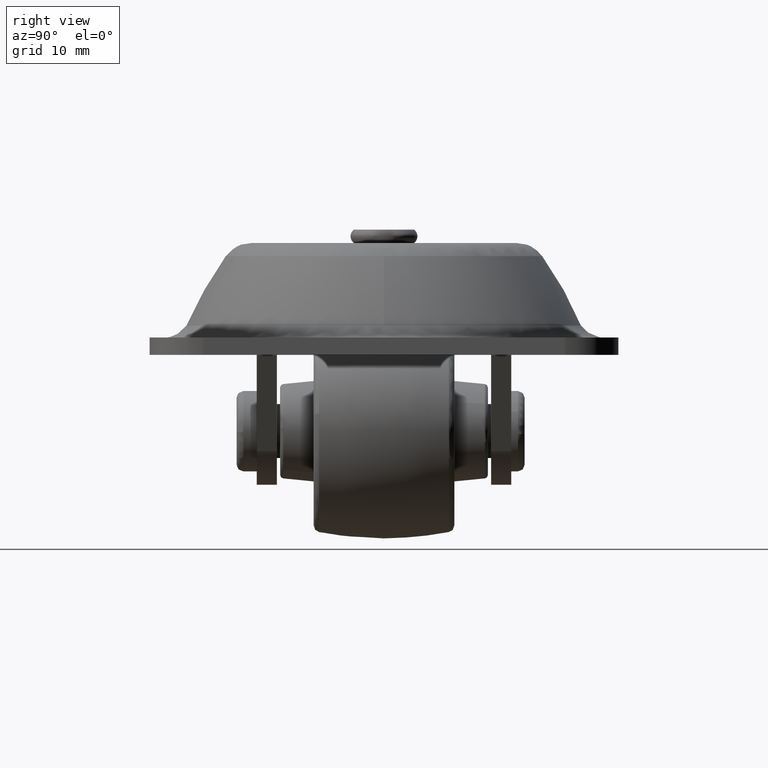
[diagram: clean part render]
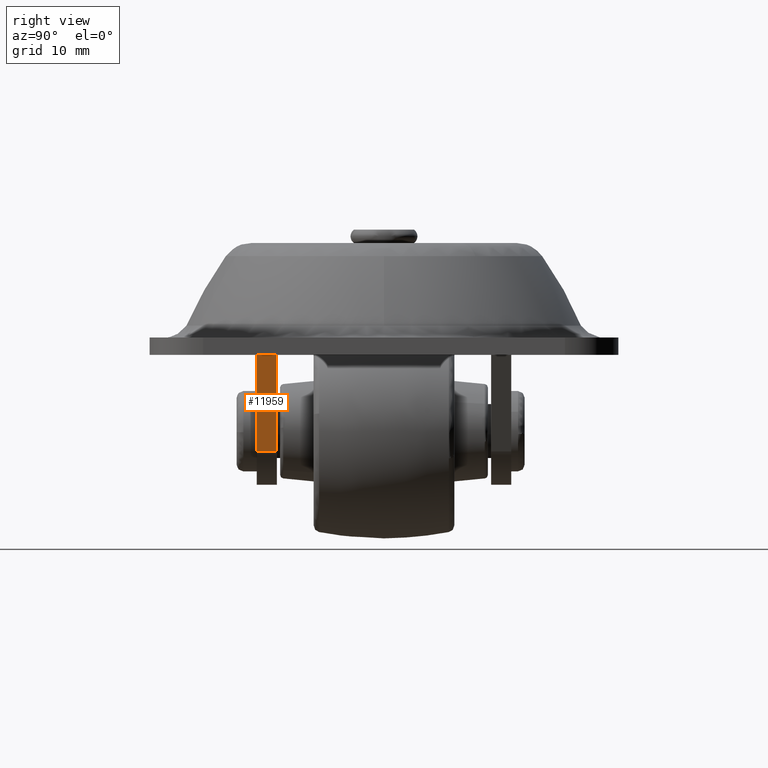
[diagram: same view with one face highlighted and labeled with its STEP entity id]
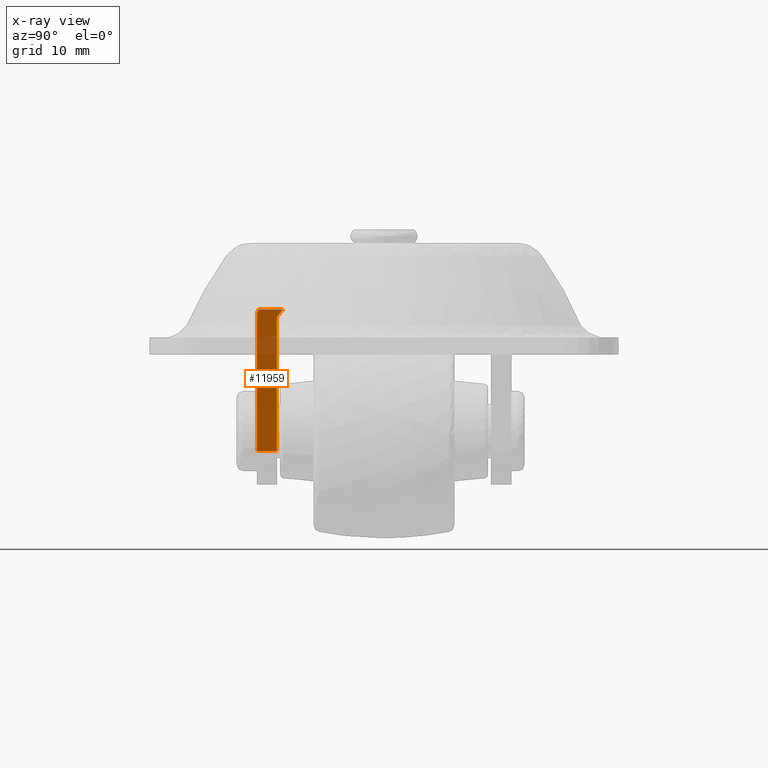
[diagram: x-ray of the same camera — body ghosted, the highlighted face saturated]
A machine part, right view. The second image highlights one B-rep face of the part: STEP entity #11959.
The next image is the same camera in x-ray: the body ghosted, the highlighted face saturated — about 12% of this face is hidden behind the body in this view.
In plain terms, the highlighted face is a freeform B-spline surface patch.
Its self-contained STEP definition (entity closure, byte-faithful):
#9896=CARTESIAN_POINT('',(16.0,-18.739078620643149,18.200000999999901));
#9897=VERTEX_POINT('',#9896);
#9917=CARTESIAN_POINT('',(15.504527354796251,-19.0,16.976298295117900));
#9918=VERTEX_POINT('',#9917);
#9924=CARTESIAN_POINT('',(16.000000000000011,-18.739078620643149,18.200000999999940));
#9925=CARTESIAN_POINT('',(15.763526772601134,-18.999999983490433,17.615966884693357));
#9926=CARTESIAN_POINT('',(15.504527354796251,-19.0,16.976298295117900));
#9934=(BOUNDED_CURVE()B_SPLINE_CURVE(2,(#9924,#9925,#9926),.UNSPECIFIED.,.F.,.U.)CURVE()GEOMETRIC_REPRESENTATION_ITEM()QUASI_UNIFORM_CURVE()RATIONAL_B_SPLINE_CURVE((1.0,0.978014881637488,1.0))REPRESENTATION_ITEM(''));
#9935=EDGE_CURVE('',#9897,#9918,#9934,.T.);
#11102=CARTESIAN_POINT('',(15.750154421583099,-15.533861628409699,17.582940274102750));
#11103=VERTEX_POINT('',#11102);
#11104=CARTESIAN_POINT('',(15.504527354796251,-16.0,16.976298295117900));
#11105=VERTEX_POINT('',#11104);
#11106=CARTESIAN_POINT('',(15.750154421583099,-15.533861628409680,17.582940274102750));
#11107=CARTESIAN_POINT('',(15.627676642879536,-15.768009999282175,17.280448520948831));
#11108=CARTESIAN_POINT('',(15.504527354796281,-15.999999999999989,16.976298295117900));
#11116=(BOUNDED_CURVE()B_SPLINE_CURVE(2,(#11106,#11107,#11108),.UNSPECIFIED.,.F.,.U.)CURVE()GEOMETRIC_REPRESENTATION_ITEM()QUASI_UNIFORM_CURVE()RATIONAL_B_SPLINE_CURVE((1.0,0.999993670740431,1.0))REPRESENTATION_ITEM(''));
#11117=EDGE_CURVE('',#11103,#11105,#11116,.T.);
#11211=CARTESIAN_POINT('',(16.0,-15.057909817492151,18.200000999999901));
#11212=VERTEX_POINT('',#11211);
#11222=CARTESIAN_POINT('',(15.750154421583050,-15.533861628409699,17.582940274102750));
#11223=CARTESIAN_POINT('',(15.833337024565960,-15.374836283734540,17.788382042189578));
#11224=CARTESIAN_POINT('',(15.916616802546191,-15.216177821460461,17.994063810018410));
#11225=CARTESIAN_POINT('',(16.0,-15.057909817492151,18.200000999999901));
#11226=QUASI_UNIFORM_CURVE('',3,(#11222,#11223,#11224,#11225),.UNSPECIFIED.,.F.,.U.);
#11227=EDGE_CURVE('',#11103,#11212,#11226,.T.);
#11389=CARTESIAN_POINT('',(7.415228071805180,-16.0,-3.002397815598800));
#11390=VERTEX_POINT('',#11389);
#11391=CARTESIAN_POINT('',(7.415228071805180,-16.0,-3.002397815598800));
#11392=CARTESIAN_POINT('',(15.504527354796251,-16.0,16.976298295117900));
#11393=QUASI_UNIFORM_CURVE('',1,(#11391,#11392),.UNSPECIFIED.,.F.,.U.);
#11394=EDGE_CURVE('',#11390,#11105,#11393,.T.);
#11831=CARTESIAN_POINT('',(7.415228071805180,-19.0,-3.002397815598800));
#11832=VERTEX_POINT('',#11831);
#11833=CARTESIAN_POINT('',(7.415228071805180,-16.0,-3.002397815598800));
#11834=CARTESIAN_POINT('',(7.415228071805180,-19.0,-3.002397815598800));
#11835=QUASI_UNIFORM_CURVE('',1,(#11833,#11834),.UNSPECIFIED.,.F.,.U.);
#11836=EDGE_CURVE('',#11390,#11832,#11835,.T.);
#11876=CARTESIAN_POINT('',(7.415228071805180,-19.0,-3.002397815598800));
#11877=CARTESIAN_POINT('',(15.504527354796251,-19.0,16.976298295117900));
#11878=QUASI_UNIFORM_CURVE('',1,(#11876,#11877),.UNSPECIFIED.,.F.,.U.);
#11879=EDGE_CURVE('',#11832,#9918,#11878,.T.);
#11941=CARTESIAN_POINT('',(16.428809260464028,-19.196907382891819,19.259060580761400));
#11942=CARTESIAN_POINT('',(6.986418506781483,-19.196907382891819,-4.061458155611473));
#11943=CARTESIAN_POINT('',(16.428809260464028,-14.861002610825500,19.259060580761400));
#11944=CARTESIAN_POINT('',(6.986418506781483,-14.861002610825500,-4.061458155611473));
#11945=B_SPLINE_SURFACE_WITH_KNOTS('',1,1,((#11941,#11943),(#11942,#11944)),.UNSPECIFIED.,.F.,.F.,.U.,(2,2),(2,2),(0.0,25.159597319487212),(0.0,4.335904772066320),.UNSPECIFIED.);
#11946=CARTESIAN_POINT('',(16.0,-15.057909817492151,18.200000999999901));
#11947=CARTESIAN_POINT('',(16.0,-18.739078620643149,18.200000999999901));
#11948=QUASI_UNIFORM_CURVE('',1,(#11946,#11947),.UNSPECIFIED.,.F.,.U.);
#11949=EDGE_CURVE('',#11212,#9897,#11948,.T.);
#11950=ORIENTED_EDGE('',*,*,#11949,.T.);
#11951=ORIENTED_EDGE('',*,*,#9935,.T.);
#11952=ORIENTED_EDGE('',*,*,#11879,.F.);
#11953=ORIENTED_EDGE('',*,*,#11836,.F.);
#11954=ORIENTED_EDGE('',*,*,#11394,.T.);
#11955=ORIENTED_EDGE('',*,*,#11117,.F.);
#11956=ORIENTED_EDGE('',*,*,#11227,.T.);
#11957=EDGE_LOOP('',(#11950,#11951,#11952,#11953,#11954,#11955,#11956));
#11958=FACE_OUTER_BOUND('',#11957,.T.);
#11959=ADVANCED_FACE('',(#11958),#11945,.T.);